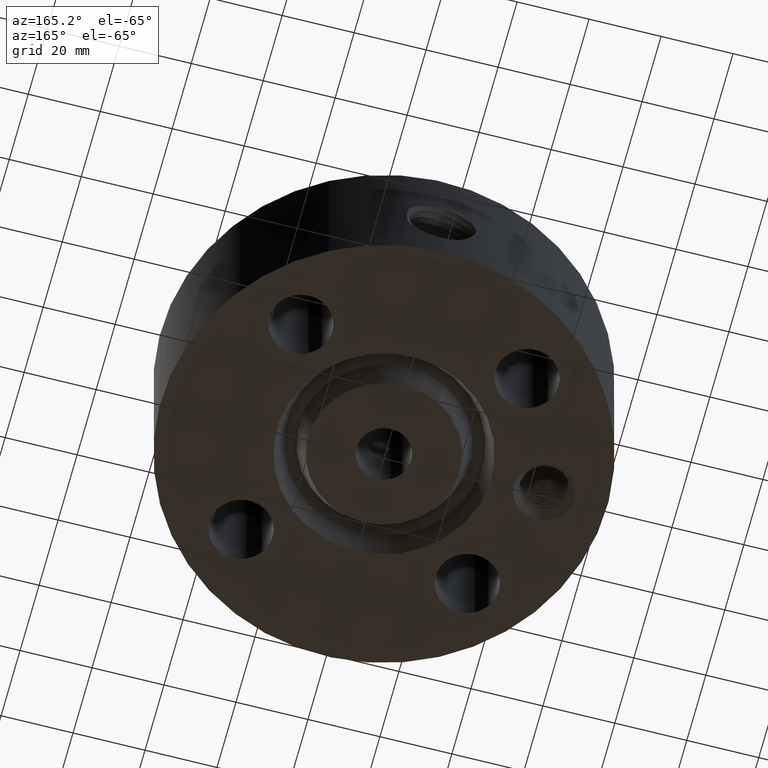
[diagram: clean part render]
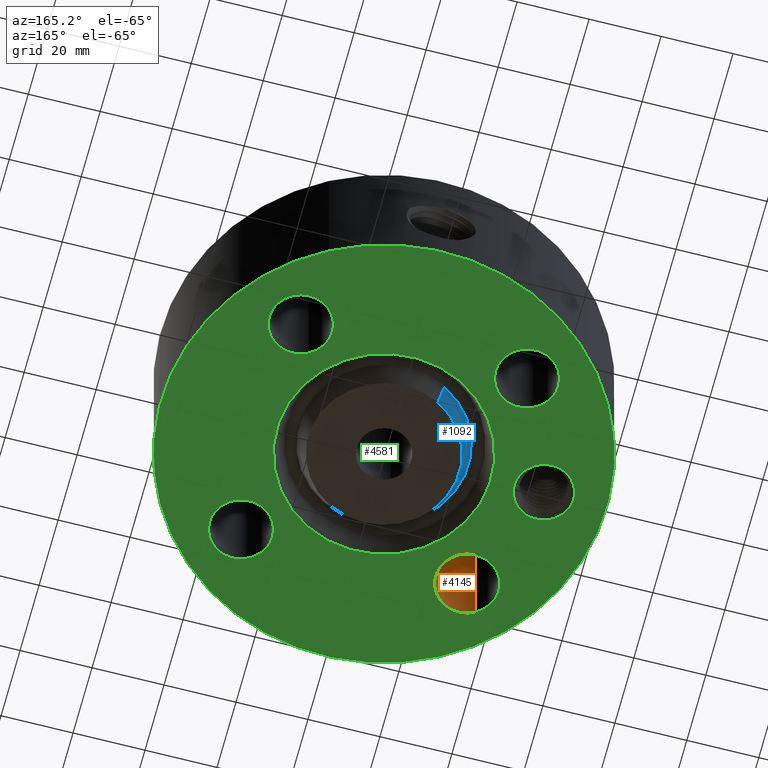
[diagram: same view with three faces highlighted in distinct colors, each labeled with its STEP entity id]
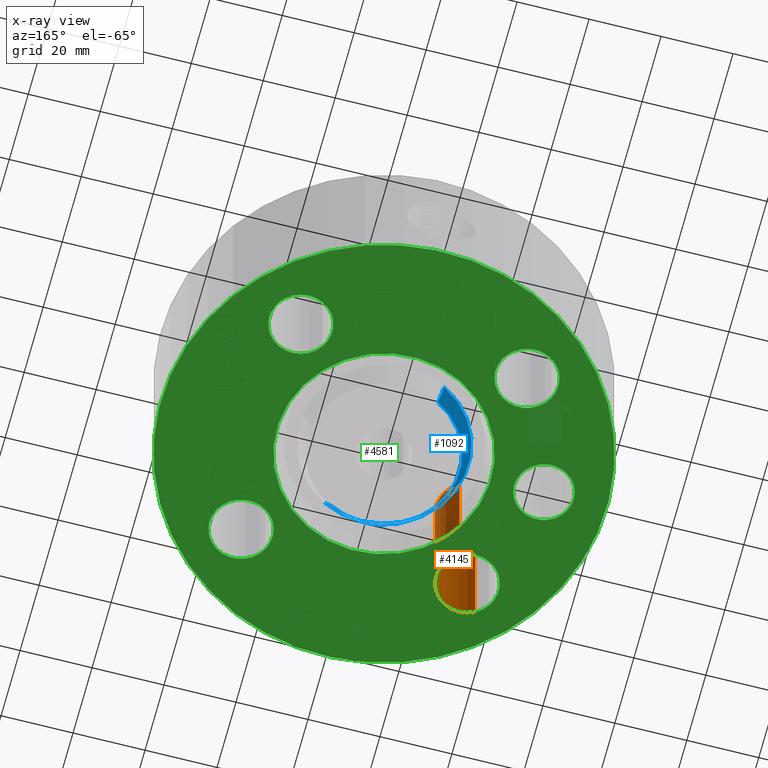
[diagram: x-ray of the same camera — body ghosted, the three highlighted faces saturated]
A machine part, auxiliary view with three faces highlighted in distinct colors.
The next image is the same camera in x-ray (body ghosted, the three faces saturated) — at least one of them is partly hidden behind the body in this view.
Their STEP definitions:

[orange] entity #4145 — the highlighted cylindrical surface (edge-blend (fillet) strip) has radius 8.763 mm, axis along (0, -0, -1).
#2985=AXIS2_PLACEMENT_3D('Circle Axis2P3D',#2983,#2984,$) ;
#4118=AXIS2_PLACEMENT_3D('Cylinder Axis2P3D',#4115,#4116,#4117) ;
#4129=AXIS2_PLACEMENT_3D('Circle Axis2P3D',#4127,#4128,$) ;
#2978=CARTESIAN_POINT('Vertex',(-1.4028386779,-1.54020285093,1.75000000001)) ;
#2980=CARTESIAN_POINT('Vertex',(-1.07203505626,-0.934670883228,1.75000000001)) ;
#2983=CARTESIAN_POINT('Axis2P3D Location',(-1.23743686708,-1.23743686708,1.75000000001)) ;
#4115=CARTESIAN_POINT('Axis2P3D Location',(-1.23743686708,-1.23743686708,1.74606299213)) ;
#4120=CARTESIAN_POINT('Line Origine',(-1.07203505626,-0.934670883228,0.875000000003)) ;
#4124=CARTESIAN_POINT('Vertex',(-1.07203505626,-0.934670883228,0.)) ;
#4127=CARTESIAN_POINT('Axis2P3D Location',(-1.23743686708,-1.23743686708,0.)) ;
#4131=CARTESIAN_POINT('Vertex',(-1.4028386779,-1.54020285093,0.)) ;
#4134=CARTESIAN_POINT('Line Origine',(-1.4028386779,-1.54020285093,0.875000000003)) ;
#2984=DIRECTION('Axis2P3D Direction',(0.,0.,-0.0393700787402)) ;
#4116=DIRECTION('Axis2P3D Direction',(0.,-0.,-0.0393700787402)) ;
#4117=DIRECTION('Axis2P3D XDirection',(-0.0188750212049,-0.0345504945626,0.)) ;
#4121=DIRECTION('Vector Direction',(0.,0.,-0.0393700787402)) ;
#4128=DIRECTION('Axis2P3D Direction',(0.,-0.,-0.0393700787402)) ;
#4135=DIRECTION('Vector Direction',(0.,0.,-0.0393700787402)) ;
#4122=VECTOR('Line Direction',#4121,0.0393700787402) ;
#4136=VECTOR('Line Direction',#4135,0.0393700787402) ;
#4140=ORIENTED_EDGE('',*,*,#4126,.F.) ;
#4141=ORIENTED_EDGE('',*,*,#4133,.T.) ;
#4142=ORIENTED_EDGE('',*,*,#4138,.T.) ;
#4143=ORIENTED_EDGE('',*,*,#2987,.F.) ;
#4145=ADVANCED_FACE('PartBody',(#4144),#4119,.F.) ;
#2986=CIRCLE('generated circle',#2985,0.345000000001) ;
#4130=CIRCLE('generated circle',#4129,0.345000000001) ;
#4119=CYLINDRICAL_SURFACE('generated cylinder',#4118,0.345000000001) ;
#2987=EDGE_CURVE('',#2981,#2979,#2986,.T.) ;
#4126=EDGE_CURVE('',#4125,#2981,#4123,.F.) ;
#4133=EDGE_CURVE('',#4125,#4132,#4130,.T.) ;
#4138=EDGE_CURVE('',#4132,#2979,#4137,.F.) ;
#4139=EDGE_LOOP('',(#4140,#4141,#4142,#4143)) ;
#4144=FACE_OUTER_BOUND('',#4139,.T.) ;
#4123=LINE('Line',#4120,#4122) ;
#4137=LINE('Line',#4134,#4136) ;
#2979=VERTEX_POINT('',#2978) ;
#2981=VERTEX_POINT('',#2980) ;
#4125=VERTEX_POINT('',#4124) ;
#4132=VERTEX_POINT('',#4131) ;

[blue] entity #1092 — the highlighted conical surface has half-angle 23 deg.
#611=AXIS2_PLACEMENT_3D('Circle Axis2P3D',#609,#610,$) ;
#1053=AXIS2_PLACEMENT_3D('Cone Axis2P3D',#1050,#1051,#1052) ;
#1083=AXIS2_PLACEMENT_3D('Circle Axis2P3D',#1081,#1082,$) ;
#604=CARTESIAN_POINT('Vertex',(-0.396964345966,0.726638361248,0.)) ;
#606=CARTESIAN_POINT('Vertex',(0.396964345966,-0.726638361248,0.)) ;
#609=CARTESIAN_POINT('Axis2P3D Location',(1.39870617276E-016,0.,0.)) ;
#1050=CARTESIAN_POINT('Axis2P3D Location',(0.,0.,-0.0600000000002)) ;
#1055=CARTESIAN_POINT('Line Origine',(-0.42048052964,0.769684446725,0.115556332492)) ;
#1059=CARTESIAN_POINT('Vertex',(-0.443996713314,0.812730532203,0.231112664984)) ;
#1066=CARTESIAN_POINT('Vertex',(0.443996713314,-0.812730532203,0.231112664984)) ;
#1069=CARTESIAN_POINT('Line Origine',(0.42048052964,-0.769684446725,0.115556332492)) ;
#1081=CARTESIAN_POINT('Axis2P3D Location',(0.,0.,0.231112664984)) ;
#610=DIRECTION('Axis2P3D Direction',(0.,0.,-0.0393700787402)) ;
#1051=DIRECTION('Axis2P3D Direction',(0.,0.,0.0393700787402)) ;
#1052=DIRECTION('Axis2P3D XDirection',(-0.0188750212049,0.0345504945626,0.)) ;
#1056=DIRECTION('Vector Direction',(-0.00737505833565,0.0134999537303,0.0362403485611)) ;
#1070=DIRECTION('Vector Direction',(0.00737505833565,-0.0134999537303,0.0362403485611)) ;
#1082=DIRECTION('Axis2P3D Direction',(0.,0.,0.0393700787402)) ;
#1057=VECTOR('Line Direction',#1056,0.0393700787402) ;
#1071=VECTOR('Line Direction',#1070,0.0393700787402) ;
#1087=ORIENTED_EDGE('',*,*,#1073,.F.) ;
#1088=ORIENTED_EDGE('',*,*,#1085,.F.) ;
#1089=ORIENTED_EDGE('',*,*,#1061,.T.) ;
#1090=ORIENTED_EDGE('',*,*,#613,.F.) ;
#1092=ADVANCED_FACE('PartBody',(#1091),#1054,.T.) ;
#612=CIRCLE('generated circle',#611,0.828000000003) ;
#1084=CIRCLE('generated circle',#1083,0.926101505996) ;
#1054=CONICAL_SURFACE('Cone',#1053,0.802531511031,0.401425727959) ;
#613=EDGE_CURVE('',#607,#605,#612,.T.) ;
#1061=EDGE_CURVE('',#1060,#605,#1058,.F.) ;
#1073=EDGE_CURVE('',#1067,#607,#1072,.F.) ;
#1085=EDGE_CURVE('',#1060,#1067,#1084,.T.) ;
#1086=EDGE_LOOP('',(#1087,#1088,#1089,#1090)) ;
#1091=FACE_OUTER_BOUND('',#1086,.T.) ;
#1058=LINE('Line',#1055,#1057) ;
#1072=LINE('Line',#1069,#1071) ;
#605=VERTEX_POINT('',#604) ;
#607=VERTEX_POINT('',#606) ;
#1060=VERTEX_POINT('',#1059) ;
#1067=VERTEX_POINT('',#1066) ;

[green] entity #4581 — the highlighted planar face has unit normal (0, 0, -1).
#598=AXIS2_PLACEMENT_3D('Plane Axis2P3D',#595,#596,#597) ;
#3368=AXIS2_PLACEMENT_3D('Circle Axis2P3D',#3366,#3367,$) ;
#3394=AXIS2_PLACEMENT_3D('Circle Axis2P3D',#3392,#3393,$) ;
#3667=AXIS2_PLACEMENT_3D('Circle Axis2P3D',#3665,#3666,$) ;
#3811=AXIS2_PLACEMENT_3D('Circle Axis2P3D',#3809,#3810,$) ;
#4086=AXIS2_PLACEMENT_3D('Circle Axis2P3D',#4084,#4085,$) ;
#4105=AXIS2_PLACEMENT_3D('Circle Axis2P3D',#4103,#4104,$) ;
#4129=AXIS2_PLACEMENT_3D('Circle Axis2P3D',#4127,#4128,$) ;
#4148=AXIS2_PLACEMENT_3D('Circle Axis2P3D',#4146,#4147,$) ;
#4172=AXIS2_PLACEMENT_3D('Circle Axis2P3D',#4170,#4171,$) ;
#4191=AXIS2_PLACEMENT_3D('Circle Axis2P3D',#4189,#4190,$) ;
#4215=AXIS2_PLACEMENT_3D('Circle Axis2P3D',#4213,#4214,$) ;
#4234=AXIS2_PLACEMENT_3D('Circle Axis2P3D',#4232,#4233,$) ;
#4545=AXIS2_PLACEMENT_3D('Circle Axis2P3D',#4543,#4544,$) ;
#4554=AXIS2_PLACEMENT_3D('Circle Axis2P3D',#4552,#4553,$) ;
#595=CARTESIAN_POINT('Axis2P3D Location',(0.,0.299500000001,0.)) ;
#3366=CARTESIAN_POINT('Axis2P3D Location',(0.,0.,0.)) ;
#3370=CARTESIAN_POINT('Vertex',(-0.561886731246,1.02852676254,0.)) ;
#3372=CARTESIAN_POINT('Vertex',(0.561886731246,-1.02852676254,3.49676543189E-017)) ;
#3392=CARTESIAN_POINT('Axis2P3D Location',(0.,0.,0.)) ;
#3665=CARTESIAN_POINT('Axis2P3D Location',(0.,0.,2.79741234551E-016)) ;
#3669=CARTESIAN_POINT('Vertex',(-1.1697983142,-2.14130145102,2.79741234551E-016)) ;
#3671=CARTESIAN_POINT('Vertex',(1.1697983142,2.14130145102,2.79741234551E-016)) ;
#3809=CARTESIAN_POINT('Axis2P3D Location',(0.,0.,2.79741234551E-016)) ;
#4081=CARTESIAN_POINT('Vertex',(1.54020285093,-1.4028386779,0.)) ;
#4084=CARTESIAN_POINT('Axis2P3D Location',(1.23743686708,-1.23743686708,0.)) ;
#4088=CARTESIAN_POINT('Vertex',(0.934670883228,-1.07203505626,0.)) ;
#4103=CARTESIAN_POINT('Axis2P3D Location',(1.23743686708,-1.23743686708,0.)) ;
#4124=CARTESIAN_POINT('Vertex',(-1.07203505626,-0.934670883228,0.)) ;
#4127=CARTESIAN_POINT('Axis2P3D Location',(-1.23743686708,-1.23743686708,0.)) ;
#4131=CARTESIAN_POINT('Vertex',(-1.4028386779,-1.54020285093,0.)) ;
#4146=CARTESIAN_POINT('Axis2P3D Location',(-1.23743686708,-1.23743686708,0.)) ;
#4167=CARTESIAN_POINT('Vertex',(-0.934670883228,1.07203505626,0.)) ;
#4170=CARTESIAN_POINT('Axis2P3D Location',(-1.23743686708,1.23743686708,0.)) ;
#4174=CARTESIAN_POINT('Vertex',(-1.54020285093,1.4028386779,0.)) ;
#4189=CARTESIAN_POINT('Axis2P3D Location',(-1.23743686708,1.23743686708,0.)) ;
#4210=CARTESIAN_POINT('Vertex',(1.07203505626,0.934670883228,0.)) ;
#4213=CARTESIAN_POINT('Axis2P3D Location',(1.23743686708,1.23743686708,0.)) ;
#4217=CARTESIAN_POINT('Vertex',(1.4028386779,1.54020285093,0.)) ;
#4232=CARTESIAN_POINT('Axis2P3D Location',(1.23743686708,1.23743686708,0.)) ;
#4543=CARTESIAN_POINT('Axis2P3D Location',(-1.75000000001,0.,0.)) ;
#4547=CARTESIAN_POINT('Vertex',(-1.46423717829,-0.156112941009,0.)) ;
#4549=CARTESIAN_POINT('Vertex',(-2.03576282172,0.156112941009,0.)) ;
#4552=CARTESIAN_POINT('Axis2P3D Location',(-1.75000000001,0.,0.)) ;
#596=DIRECTION('Axis2P3D Direction',(0.,0.,-0.0393700787402)) ;
#597=DIRECTION('Axis2P3D XDirection',(0.0393700787402,0.,0.)) ;
#3367=DIRECTION('Axis2P3D Direction',(0.,0.,-0.0393700787402)) ;
#3393=DIRECTION('Axis2P3D Direction',(0.,0.,-0.0393700787402)) ;
#3666=DIRECTION('Axis2P3D Direction',(0.,0.,-0.0393700787402)) ;
#3810=DIRECTION('Axis2P3D Direction',(0.,0.,-0.0393700787402)) ;
#4085=DIRECTION('Axis2P3D Direction',(0.,-0.,-0.0393700787402)) ;
#4104=DIRECTION('Axis2P3D Direction',(0.,-0.,-0.0393700787402)) ;
#4128=DIRECTION('Axis2P3D Direction',(0.,-0.,-0.0393700787402)) ;
#4147=DIRECTION('Axis2P3D Direction',(0.,-0.,-0.0393700787402)) ;
#4171=DIRECTION('Axis2P3D Direction',(-0.,0.,-0.0393700787402)) ;
#4190=DIRECTION('Axis2P3D Direction',(-0.,0.,-0.0393700787402)) ;
#4214=DIRECTION('Axis2P3D Direction',(0.,0.,-0.0393700787402)) ;
#4233=DIRECTION('Axis2P3D Direction',(0.,0.,-0.0393700787402)) ;
#4544=DIRECTION('Axis2P3D Direction',(0.,0.,-0.0393700787402)) ;
#4553=DIRECTION('Axis2P3D Direction',(0.,0.,-0.0393700787402)) ;
#4540=ORIENTED_EDGE('',*,*,#3673,.T.) ;
#4541=ORIENTED_EDGE('',*,*,#3813,.T.) ;
#4558=ORIENTED_EDGE('',*,*,#4551,.F.) ;
#4559=ORIENTED_EDGE('',*,*,#4556,.F.) ;
#4562=ORIENTED_EDGE('',*,*,#4090,.F.) ;
#4563=ORIENTED_EDGE('',*,*,#4107,.F.) ;
#4566=ORIENTED_EDGE('',*,*,#4133,.F.) ;
#4567=ORIENTED_EDGE('',*,*,#4150,.F.) ;
#4570=ORIENTED_EDGE('',*,*,#4176,.F.) ;
#4571=ORIENTED_EDGE('',*,*,#4193,.F.) ;
#4574=ORIENTED_EDGE('',*,*,#4219,.F.) ;
#4575=ORIENTED_EDGE('',*,*,#4236,.F.) ;
#4578=ORIENTED_EDGE('',*,*,#3396,.F.) ;
#4579=ORIENTED_EDGE('',*,*,#3374,.F.) ;
#4560=FACE_BOUND('',#4557,.T.) ;
#4564=FACE_BOUND('',#4561,.T.) ;
#4568=FACE_BOUND('',#4565,.T.) ;
#4572=FACE_BOUND('',#4569,.T.) ;
#4576=FACE_BOUND('',#4573,.T.) ;
#4580=FACE_BOUND('',#4577,.T.) ;
#4581=ADVANCED_FACE('PartBody',(#4542,#4560,#4564,#4568,#4572,#4576,#4580),#599,.T.) ;
#3369=CIRCLE('generated circle',#3368,1.172) ;
#3395=CIRCLE('generated circle',#3394,1.172) ;
#3668=CIRCLE('generated circle',#3667,2.44000000001) ;
#3812=CIRCLE('generated circle',#3811,2.44000000001) ;
#4087=CIRCLE('generated circle',#4086,0.345000000001) ;
#4106=CIRCLE('generated circle',#4105,0.345000000001) ;
#4130=CIRCLE('generated circle',#4129,0.345000000001) ;
#4149=CIRCLE('generated circle',#4148,0.345000000001) ;
#4173=CIRCLE('generated circle',#4172,0.345000000001) ;
#4192=CIRCLE('generated circle',#4191,0.345000000001) ;
#4216=CIRCLE('generated circle',#4215,0.345000000001) ;
#4235=CIRCLE('generated circle',#4234,0.345000000001) ;
#4546=CIRCLE('generated circle',#4545,0.325625000001) ;
#4555=CIRCLE('generated circle',#4554,0.325625000001) ;
#3374=EDGE_CURVE('',#3371,#3373,#3369,.T.) ;
#3396=EDGE_CURVE('',#3373,#3371,#3395,.T.) ;
#3673=EDGE_CURVE('',#3670,#3672,#3668,.T.) ;
#3813=EDGE_CURVE('',#3672,#3670,#3812,.T.) ;
#4090=EDGE_CURVE('',#4082,#4089,#4087,.T.) ;
#4107=EDGE_CURVE('',#4089,#4082,#4106,.T.) ;
#4133=EDGE_CURVE('',#4125,#4132,#4130,.T.) ;
#4150=EDGE_CURVE('',#4132,#4125,#4149,.T.) ;
#4176=EDGE_CURVE('',#4168,#4175,#4173,.T.) ;
#4193=EDGE_CURVE('',#4175,#4168,#4192,.T.) ;
#4219=EDGE_CURVE('',#4211,#4218,#4216,.T.) ;
#4236=EDGE_CURVE('',#4218,#4211,#4235,.T.) ;
#4551=EDGE_CURVE('',#4548,#4550,#4546,.T.) ;
#4556=EDGE_CURVE('',#4550,#4548,#4555,.T.) ;
#4539=EDGE_LOOP('',(#4540,#4541)) ;
#4557=EDGE_LOOP('',(#4558,#4559)) ;
#4561=EDGE_LOOP('',(#4562,#4563)) ;
#4565=EDGE_LOOP('',(#4566,#4567)) ;
#4569=EDGE_LOOP('',(#4570,#4571)) ;
#4573=EDGE_LOOP('',(#4574,#4575)) ;
#4577=EDGE_LOOP('',(#4578,#4579)) ;
#4542=FACE_OUTER_BOUND('',#4539,.T.) ;
#599=PLANE('',#598) ;
#3371=VERTEX_POINT('',#3370) ;
#3373=VERTEX_POINT('',#3372) ;
#3670=VERTEX_POINT('',#3669) ;
#3672=VERTEX_POINT('',#3671) ;
#4082=VERTEX_POINT('',#4081) ;
#4089=VERTEX_POINT('',#4088) ;
#4125=VERTEX_POINT('',#4124) ;
#4132=VERTEX_POINT('',#4131) ;
#4168=VERTEX_POINT('',#4167) ;
#4175=VERTEX_POINT('',#4174) ;
#4211=VERTEX_POINT('',#4210) ;
#4218=VERTEX_POINT('',#4217) ;
#4548=VERTEX_POINT('',#4547) ;
#4550=VERTEX_POINT('',#4549) ;